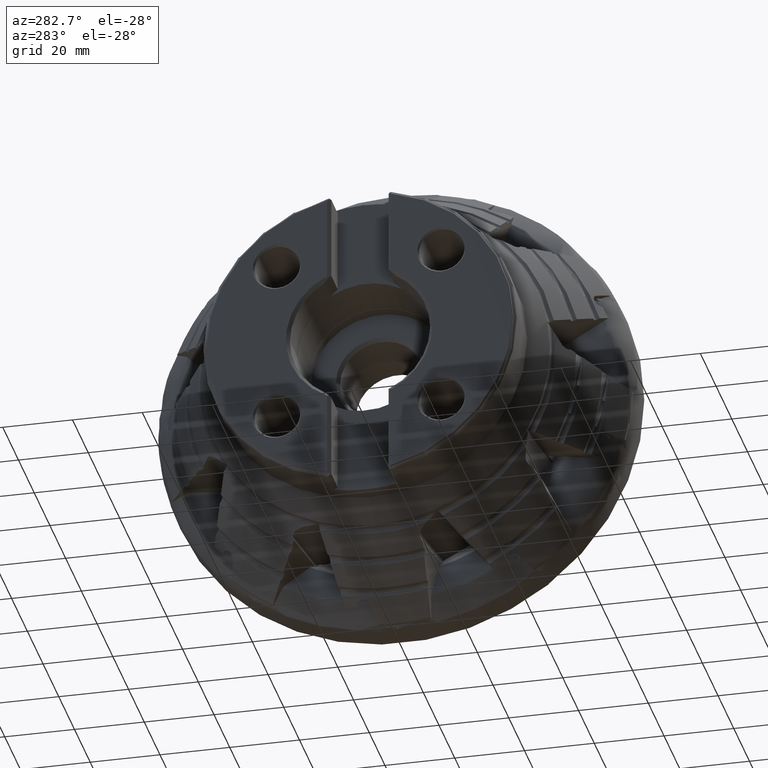
[diagram: clean part render]
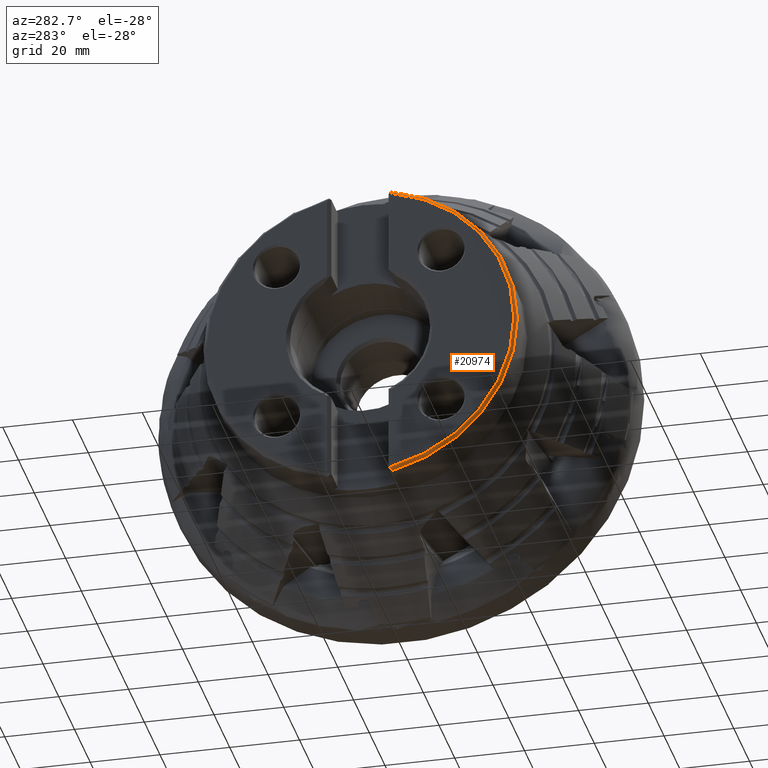
[diagram: same view with one face highlighted and labeled with its STEP entity id]
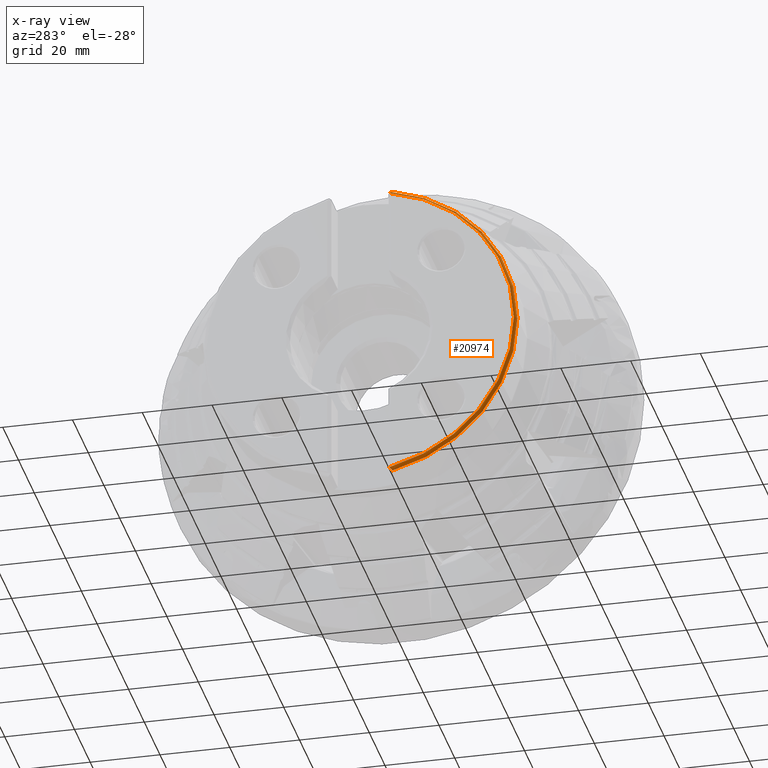
[diagram: x-ray of the same camera — body ghosted, the highlighted face saturated]
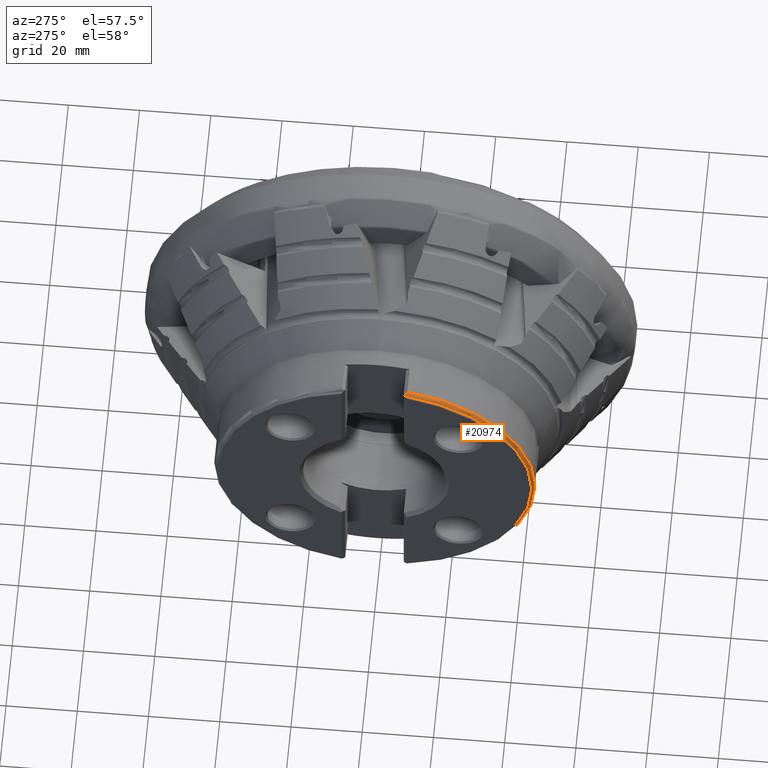
[diagram: same view with one face highlighted and labeled with its STEP entity id]
A machine part, auxiliary view. The second image highlights one B-rep face of the part: STEP entity #20974.
The next image is the same camera in x-ray: the body ghosted, the highlighted face saturated — about 0% of this face is hidden behind the body in this view.
A second angle (auxiliary view) of the same face is appended — the face is thin or edge-on in the first view.
In plain terms, the highlighted toroidal blend (fillet) surface has major radius 44 mm and minor (blend) radius 1 mm.
Its self-contained STEP definition (entity closure, byte-faithful):
#97 = ORIENTED_EDGE ( 'NONE', *, *, #15000, .T. ) ;
#675 = CARTESIAN_POINT ( 'NONE',  ( -60.62065711703061800, -8.929543678886876300, -43.88998192149956900 ) ) ;
#820 = EDGE_CURVE ( 'NONE', #3812, #22169, #3123, .T. ) ;
#2306 = CARTESIAN_POINT ( 'NONE',  ( -60.87628637090361400, -8.576286370903622100, 43.64718786304221300 ) ) ;
#2307 = DIRECTION ( 'NONE',  ( 1.000000000000000000, -0.0000000000000000000, -0.0000000000000000000 ) ) ;
#2468 = CARTESIAN_POINT ( 'NONE',  ( -60.20392834671765300, -9.170586121755601300, -44.05565060447369100 ) ) ;
#2555 = EDGE_LOOP ( 'NONE', ( #17027, #3349, #21044, #97, #2896, #15527 ) ) ;
#2639 = VERTEX_POINT ( 'NONE', #20452 ) ;
#2853 = CARTESIAN_POINT ( 'NONE',  ( -60.87628637090360700, -8.576286370903618600, -43.64718786304222000 ) ) ;
#2896 = ORIENTED_EDGE ( 'NONE', *, *, #13943, .F. ) ;
#2926 = CARTESIAN_POINT ( 'NONE',  ( -60.92103996291587000, -8.621039962915883600, -43.55543936027861900 ) ) ;
#3123 = B_SPLINE_CURVE_WITH_KNOTS ( 'NONE', 3,
 ( #7737, #21948, #18412, #20237, #9544, #22025 ),
 .UNSPECIFIED., .F., .F.,
 ( 4, 2, 4 ),
 ( 0.0000000000000000000, 0.0005991824275627923200, 0.001198364855125584600 ),
 .UNSPECIFIED. ) ;
#3349 = ORIENTED_EDGE ( 'NONE', *, *, #820, .T. ) ;
#3661 = CARTESIAN_POINT ( 'NONE',  ( -60.00000000000000000, 0.0000000000000000000, 0.0000000000000000000 ) ) ;
#3812 = VERTEX_POINT ( 'NONE', #15955 ) ;
#5423 = B_SPLINE_CURVE_WITH_KNOTS ( 'NONE', 3,
 ( #2853, #2926, #8281, #20785 ),
 .UNSPECIFIED., .F., .F.,
 ( 4, 4 ),
 ( 0.0007089229563062067100, 0.001042511531537471000 ),
 .UNSPECIFIED. ) ;
#5883 = AXIS2_PLACEMENT_3D ( 'NONE', #12938, #2307, #14720 ) ;
#5942 = CARTESIAN_POINT ( 'NONE',  ( -60.83932967858029200, -8.653796190549993400, -43.70046043025302400 ) ) ;
#7370 = EDGE_CURVE ( 'NONE', #2639, #22169, #7901, .T. ) ;
#7510 = CARTESIAN_POINT ( 'NONE',  ( -60.97876197310684200, 0.0000000000000000000, 0.0000000000000000000 ) ) ;
#7737 = CARTESIAN_POINT ( 'NONE',  ( -60.00000000000000000, -9.170586121755603100, 44.05565060447370500 ) ) ;
#7901 = B_SPLINE_CURVE_WITH_KNOTS ( 'NONE', 3,
 ( #21843, #20053, #12937, #2306 ),
 .UNSPECIFIED., .F., .F.,
 ( 4, 4 ),
 ( 1.035997719103424000E-006, 0.0003364340421877577700 ),
 .UNSPECIFIED. ) ;
#8281 = CARTESIAN_POINT ( 'NONE',  ( -60.95729097657539300, -8.657290976575405100, -43.45352399257156200 ) ) ;
#8461 = VERTEX_POINT ( 'NONE', #15459 ) ;
#9315 = DIRECTION ( 'NONE',  ( 0.0000000000000000000, 0.0000000000000000000, -1.000000000000000000 ) ) ;
#9544 = CARTESIAN_POINT ( 'NONE',  ( -60.80244004992971400, -8.731165356559595000, 43.75363632609553800 ) ) ;
#9675 = AXIS2_PLACEMENT_3D ( 'NONE', #3661, #17977, #19794 ) ;
#11321 = CARTESIAN_POINT ( 'NONE',  ( -60.68558608498955200, -8.864617045229705300, -43.84535778908574600 ) ) ;
#11525 = CARTESIAN_POINT ( 'NONE',  ( -60.97876197310687700, -8.678761973106890800, -43.34467805410653100 ) ) ;
#12937 = CARTESIAN_POINT ( 'NONE',  ( -60.92163782969179000, -8.621637829691795900, 43.55421368477244200 ) ) ;
#12938 = CARTESIAN_POINT ( 'NONE',  ( -60.00000000000000000, 0.0000000000000000000, 0.0000000000000000000 ) ) ;
#13099 = CARTESIAN_POINT ( 'NONE',  ( -60.39696950763735800, -9.096429962436701500, -44.00468301095542500 ) ) ;
#13943 = EDGE_CURVE ( 'NONE', #8461, #17850, #5423, .T. ) ;
#14204 = CIRCLE ( 'NONE', #23043, 44.20499999999999100 ) ;
#14439 = VERTEX_POINT ( 'NONE', #22535 ) ;
#14720 = DIRECTION ( 'NONE',  ( 0.0000000000000000000, 0.0000000000000000000, -1.000000000000000000 ) ) ;
#14894 = CARTESIAN_POINT ( 'NONE',  ( -60.00000000000000000, -9.170586121755604800, -44.05565060447370500 ) ) ;
#15000 = EDGE_CURVE ( 'NONE', #2639, #17850, #14204, .T. ) ;
#15459 = CARTESIAN_POINT ( 'NONE',  ( -60.87628637090360700, -8.576286370903618600, -43.64718786304222000 ) ) ;
#15527 = ORIENTED_EDGE ( 'NONE', *, *, #20234, .T. ) ;
#15955 = CARTESIAN_POINT ( 'NONE',  ( -60.00000000000000000, -9.170586121755603100, 44.05565060447370500 ) ) ;
#16174 = CARTESIAN_POINT ( 'NONE',  ( -60.87628637090361400, -8.576286370903622100, 43.64718786304221300 ) ) ;
#16828 = B_SPLINE_CURVE_WITH_KNOTS ( 'NONE', 3,
 ( #20223, #5942, #22006, #11321, #675, #13099, #2468, #14894 ),
 .UNSPECIFIED., .F., .F.,
 ( 4, 2, 2, 4 ),
 ( 0.0000000000000000000, 0.0002984446912742969000, 0.0005968893825485937900, 0.001193778765097203000 ),
 .UNSPECIFIED. ) ;
#17027 = ORIENTED_EDGE ( 'NONE', *, *, #17328, .F. ) ;
#17328 = EDGE_CURVE ( 'NONE', #3812, #14439, #20989, .T. ) ;
#17774 = FACE_OUTER_BOUND ( 'NONE', #2555, .T. ) ;
#17850 = VERTEX_POINT ( 'NONE', #11525 ) ;
#17977 = DIRECTION ( 'NONE',  ( 1.000000000000000000, -0.0000000000000000000, -0.0000000000000000000 ) ) ;
#18331 = TOROIDAL_SURFACE ( 'NONE', #9675, 44.00000000000000000, 1.000000000000005600 ) ;
#18412 = CARTESIAN_POINT ( 'NONE',  ( -60.39621132977281100, -9.096745948872412100, 44.00490018871060000 ) ) ;
#19794 = DIRECTION ( 'NONE',  ( 0.0000000000000000000, 0.0000000000000000000, -1.000000000000000000 ) ) ;
#19999 = DIRECTION ( 'NONE',  ( 1.000000000000000000, -0.0000000000000000000, -0.0000000000000000000 ) ) ;
#20053 = CARTESIAN_POINT ( 'NONE',  ( -60.95713453310330000, -8.657134533103306500, 43.45431707343821900 ) ) ;
#20223 = CARTESIAN_POINT ( 'NONE',  ( -60.87628637090360700, -8.576286370903618600, -43.64718786304222000 ) ) ;
#20234 = EDGE_CURVE ( 'NONE', #8461, #14439, #16828, .T. ) ;
#20237 = CARTESIAN_POINT ( 'NONE',  ( -60.69426874741293400, -8.874872597005799300, 43.85240643884093700 ) ) ;
#20452 = CARTESIAN_POINT ( 'NONE',  ( -60.97876197310687700, -8.678761973106890800, 43.34467805410653100 ) ) ;
#20785 = CARTESIAN_POINT ( 'NONE',  ( -60.97876197310687700, -8.678761973106890800, -43.34467805410653100 ) ) ;
#20974 = ADVANCED_FACE ( 'NONE', ( #17774 ), #18331, .T. ) ;
#20989 = CIRCLE ( 'NONE', #5883, 45.00000000000000700 ) ;
#21044 = ORIENTED_EDGE ( 'NONE', *, *, #7370, .F. ) ;
#21843 = CARTESIAN_POINT ( 'NONE',  ( -60.97876197310687700, -8.678761973106890800, 43.34467805410653100 ) ) ;
#21948 = CARTESIAN_POINT ( 'NONE',  ( -60.20317343704849100, -9.170586121755603100, 44.05565060447369800 ) ) ;
#22006 = CARTESIAN_POINT ( 'NONE',  ( -60.79433064521206400, -8.727233846006836200, -43.75093419543495800 ) ) ;
#22025 = CARTESIAN_POINT ( 'NONE',  ( -60.87628637090361400, -8.576286370903622100, 43.64718786304221300 ) ) ;
#22169 = VERTEX_POINT ( 'NONE', #16174 ) ;
#22535 = CARTESIAN_POINT ( 'NONE',  ( -60.00000000000000000, -9.170586121755604800, -44.05565060447370500 ) ) ;
#23043 = AXIS2_PLACEMENT_3D ( 'NONE', #7510, #19999, #9315 ) ;